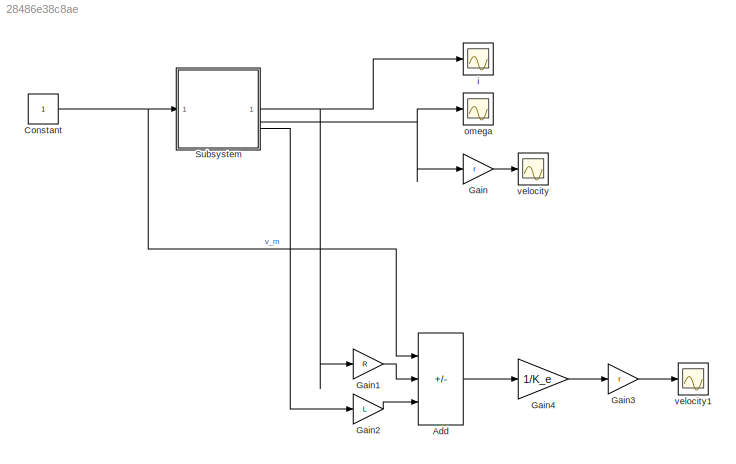
MODEL slx_28486e38c8ae
KIND model
CONFIG AbsTol = auto
CONFIG EnableMultiTasking = off
CONFIG FixedStep = auto
CONFIG MaxStep = auto
CONFIG MinStep = auto
CONFIG RelTol = 1e-3
CONFIG SampleTimeConstraint = Unconstrained
CONFIG SolverName = VariableStepAuto
CONFIG StartTime = 0.0
CONFIG StopTime = 10
BLOCK [Sum] Add
  IconShape = rectangular
  Inputs = +--
BLOCK [Constant] Constant
BLOCK [Gain] Gain
  Gain = r
BLOCK [Gain] Gain1
  Gain = R
BLOCK [Gain] Gain2
  Gain = L
BLOCK [Gain] Gain3
  Gain = r
  NameLocation = right
BLOCK [Gain] Gain4
  Gain = 1/K_e
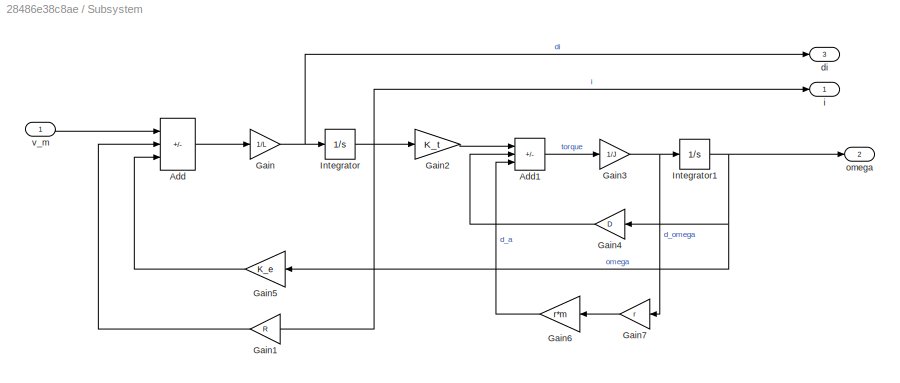
BLOCK [SubSystem] Subsystem
BLOCK [Sum] Subsystem/Add
  IconShape = rectangular
  Inputs = +--
BLOCK [Sum] Subsystem/Add1
  IconShape = rectangular
  Inputs = +--
BLOCK [Gain] Subsystem/Gain
  Gain = 1/L
BLOCK [Gain] Subsystem/Gain1
  Gain = R
  NameLocation = top
BLOCK [Gain] Subsystem/Gain2
  Gain = K_t
BLOCK [Gain] Subsystem/Gain3
  Gain = 1/J
BLOCK [Gain] Subsystem/Gain4
  Gain = D
  NameLocation = top
BLOCK [Gain] Subsystem/Gain5
  Gain = K_e
  NameLocation = top
BLOCK [Gain] Subsystem/Gain6
  Gain = r*m
  NameLocation = top
BLOCK [Gain] Subsystem/Gain7
  Gain = r
  NameLocation = top
BLOCK [Integrator] Subsystem/Integrator
BLOCK [Integrator] Subsystem/Integrator1
BLOCK [Outport] Subsystem/di
  Port = 3
BLOCK [Outport] Subsystem/i
BLOCK [Outport] Subsystem/omega
  Port = 2
BLOCK [Inport] Subsystem/v_m
BLOCK [Scope] i
  Floating = off
  NumInputPorts = 1
  ScopeSpecificationString = Simulink.scopes.TimeScopeBlockCfg('CurrentConfiguration', extmgr.ConfigurationSet(extmgr.Configuration('Core','General UI',true),extmgr.Configuration('Core','Source UI',true),extmgr.Configuration('Sources','WiredSimulink',true),extmgr.Configuration('Visuals','Time Domain',true,'SerializedDisplays',{struct('MinYLimReal','-0.04247','MaxYLimReal','0.38221','YLabelReal','','MinYLimMag','0.00000','MaxY...<+1388ch>
BLOCK [Scope] omega
  Floating = off
  NumInputPorts = 1
  ScopeSpecificationString = Simulink.scopes.TimeScopeBlockCfg('CurrentConfiguration', extmgr.ConfigurationSet(extmgr.Configuration('Core','General UI',true),extmgr.Configuration('Core','Source UI',true),extmgr.Configuration('Sources','WiredSimulink',true,'DataLoggingVariableName','ScopeData1'),extmgr.Configuration('Visuals','Time Domain',true,'SerializedDisplays',{struct('MinYLimReal','-10.61289','MaxYLimReal','95.51597','YL...<+1410ch>
BLOCK [Scope] velocity
  Floating = off
  NumInputPorts = 1
  ScopeSpecificationString = Simulink.scopes.TimeScopeBlockCfg('CurrentConfiguration', extmgr.ConfigurationSet(extmgr.Configuration('Core','General UI',true),extmgr.Configuration('Core','Source UI',true),extmgr.Configuration('Sources','WiredSimulink',true,'DataLoggingVariableName','ScopeData2'),extmgr.Configuration('Visuals','Time Domain',true,'SerializedDisplays',{struct('MinYLimReal','-0.12735','MaxYLimReal','1.14619','YLab...<+1421ch>
BLOCK [Scope] velocity1
  Floating = off
  NumInputPorts = 1
  ScopeSpecificationString = Simulink.scopes.TimeScopeBlockCfg('CurrentConfiguration', extmgr.ConfigurationSet(extmgr.Configuration('Core','General UI',true),extmgr.Configuration('Core','Source UI',true),extmgr.Configuration('Sources','WiredSimulink',true,'DataLoggingVariableName','ScopeData3'),extmgr.Configuration('Visuals','Time Domain',true,'SerializedDisplays',{struct('MinYLimReal','-0.12735','MaxYLimReal','1.14619','YLab...<+1422ch>
LINE Add:1 -> Gain4:1
NET Constant:1 -> Add:1, Subsystem:1
LINE Gain1:1 -> Add:2
LINE Gain2:1 -> Add:3
LINE Gain3:1 -> velocity1:1
LINE Gain4:1 -> Gain3:1
LINE Gain:1 -> velocity:1
LINE Subsystem/Add1:1 -> Subsystem/Gain3:1
LINE Subsystem/Add:1 -> Subsystem/Gain:1
LINE Subsystem/Gain1:1 -> Subsystem/Add:2
LINE Subsystem/Gain2:1 -> Subsystem/Add1:1
NET Subsystem/Gain3:1 -> Subsystem/Gain7:1, Subsystem/Integrator1:1
LINE Subsystem/Gain4:1 -> Subsystem/Add1:2
LINE Subsystem/Gain5:1 -> Subsystem/Add:3
LINE Subsystem/Gain6:1 -> Subsystem/Add1:3
LINE Subsystem/Gain7:1 -> Subsystem/Gain6:1
NET Subsystem/Gain:1 -> Subsystem/Integrator:1, Subsystem/di:1
NET Subsystem/Integrator1:1 -> Subsystem/Gain4:1, Subsystem/Gain5:1, Subsystem/omega:1
NET Subsystem/Integrator:1 -> Subsystem/Gain1:1, Subsystem/Gain2:1, Subsystem/i:1
LINE Subsystem/v_m:1 -> Subsystem/Add:1
NET Subsystem:1 -> Gain1:1, i:1
NET Subsystem:2 -> Gain:1, omega:1
LINE Subsystem:3 -> Gain2:1
note: NET lines group one-source signal fan-out (src -> all destinations, sorted); 1:1 wires keep LINE
